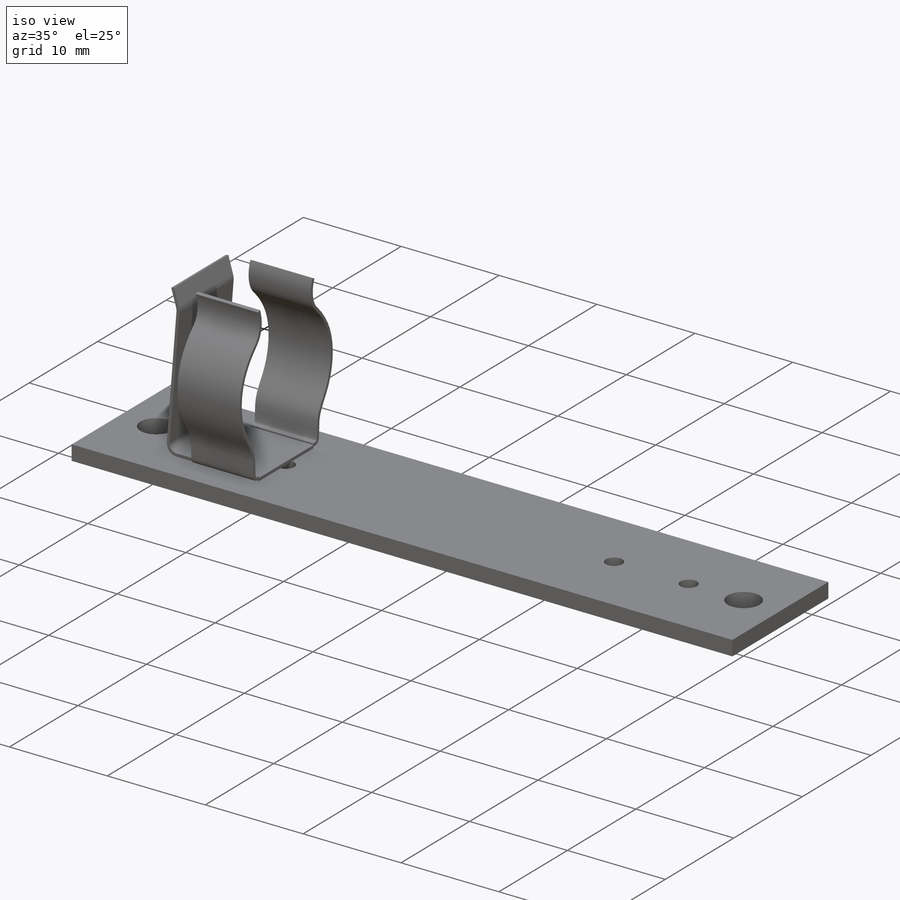
[diagram: iso view]
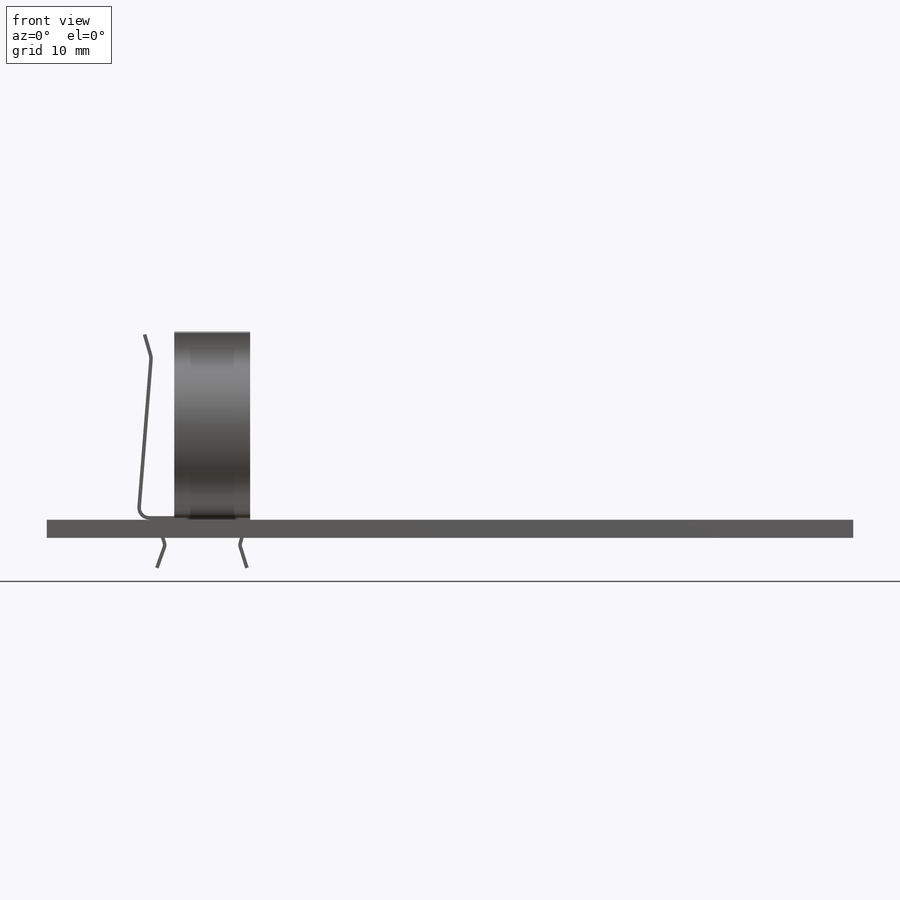
[diagram: front view]
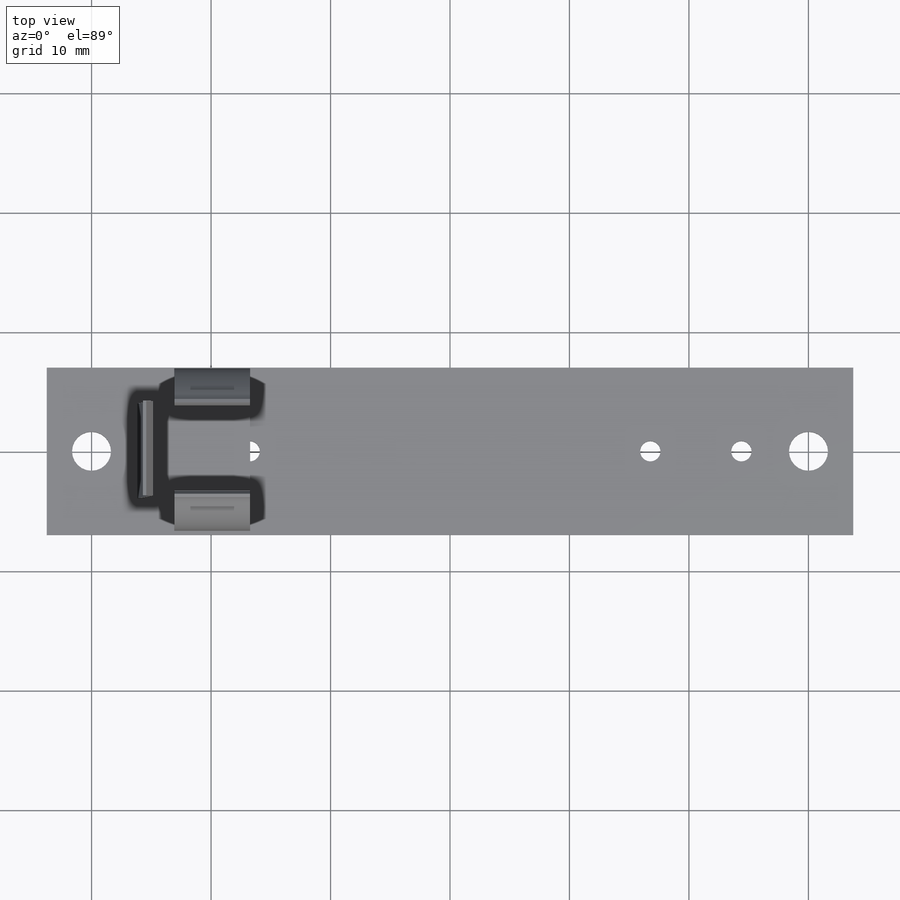
[diagram: top view]
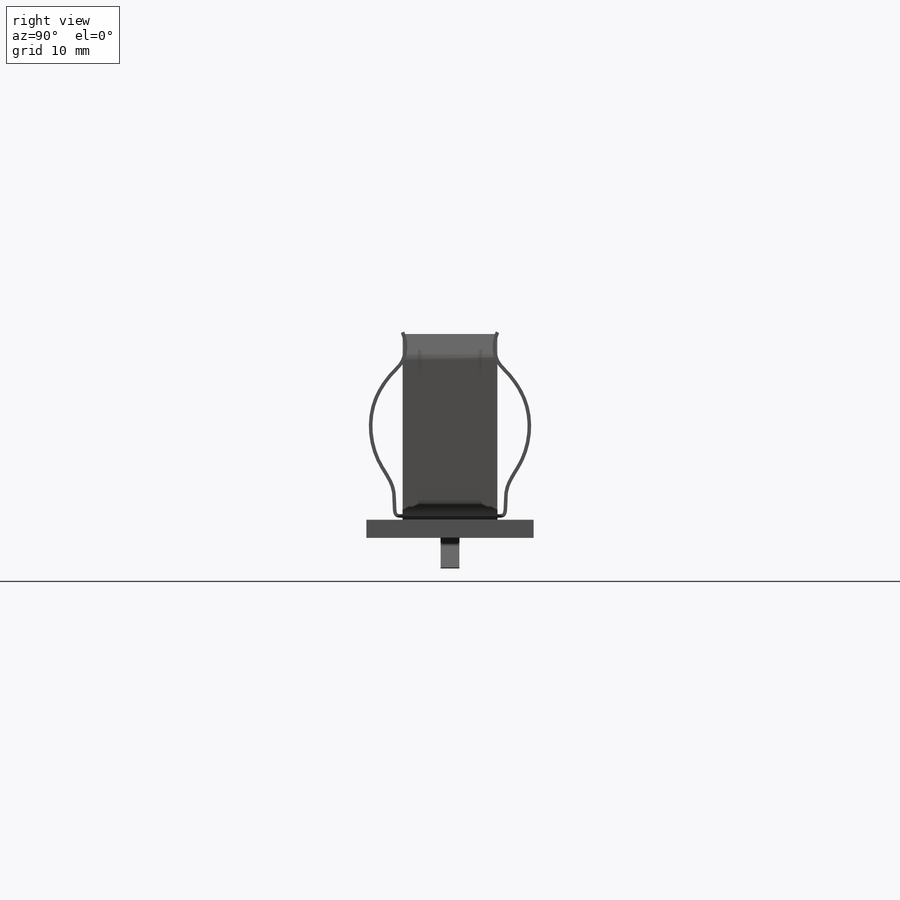
[diagram: right view]
SOLIDWORKS PART (.sldprt)
format: sldprt  version: not decoded by parser v0  size: 349,696 bytes
history: native  units: mm
features: plane x3, sketch x3, material x1, move_body x1, extrude x1, mirror x1, hole x1 + 1 further entry (+18 scaffold rows collapsed; 5 parser-record rows omitted)
feature tree (35):
  scaffold x18  (default folders/planes/origin — collapsed)
  material  "Material <not specified>"
  plane  "Front Plane-bk-92"
  plane  "Top Plane-bk-92"
  plane  "Right Plane-bk-92"
  "bk-92"
  parser-record x5  (decoder bookkeeping rows leaked as tree rows — omitted from the tree; the rows remain in map.json)
  move_body  "Body-Move/Copy2"
  sketch  "Sketch1"  dims[c1.D1=~5.300846mm c1.D2=~2.350185mm c1.D3=~1.313793mm c1.D4=1.7mm c2.D1=7.62mm c2.D2=7.62mm c2.D3=33.53mm c2.D5=14.0mm c2.D6=67.5mm]
  extrude  "Boss-Extrude1"  Depth=1.524mm
  mirror  "Mirror1"
  hole  "#4 Clearance Hole1"  Diameter=3.2639mm Depth=4.082606mm
  sketch  "Sketch3"  dims[D1=60.0mm]
  sketch  "Sketch2"  dims[hole-wizard template sketch: 60 standard entries collapsed; hole parameters kept: c18.Thru Hole Depth=~4.082606mm]
decode coverage: 5 of 7 modeling features carry decoded parameters; 1 rows unclassified (native names shown)
note: ~ marks probable driven/reference dimensions
note: suppression state not decoded; provenance and decode notes live in map.json
